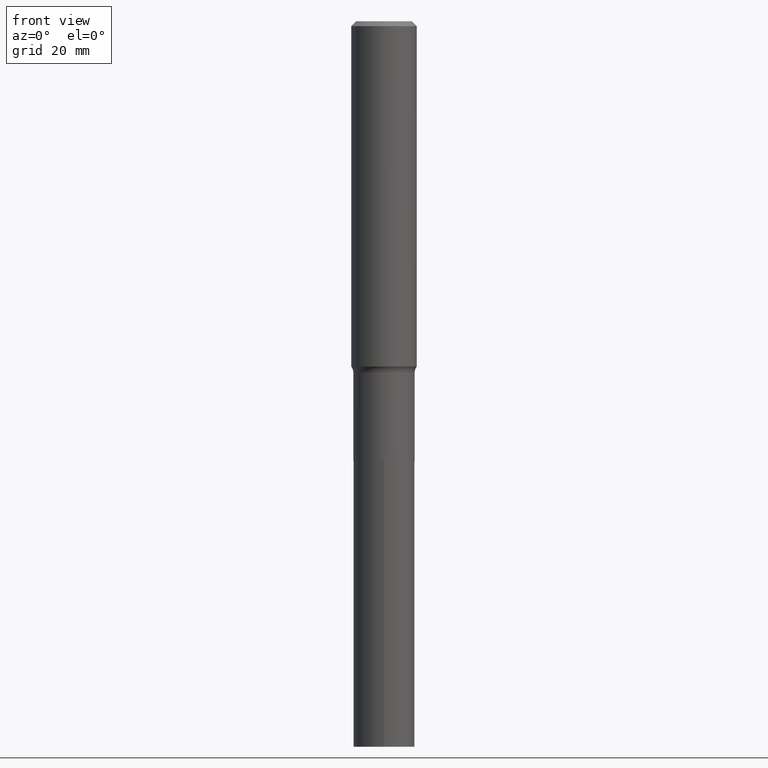
[diagram: clean part render]
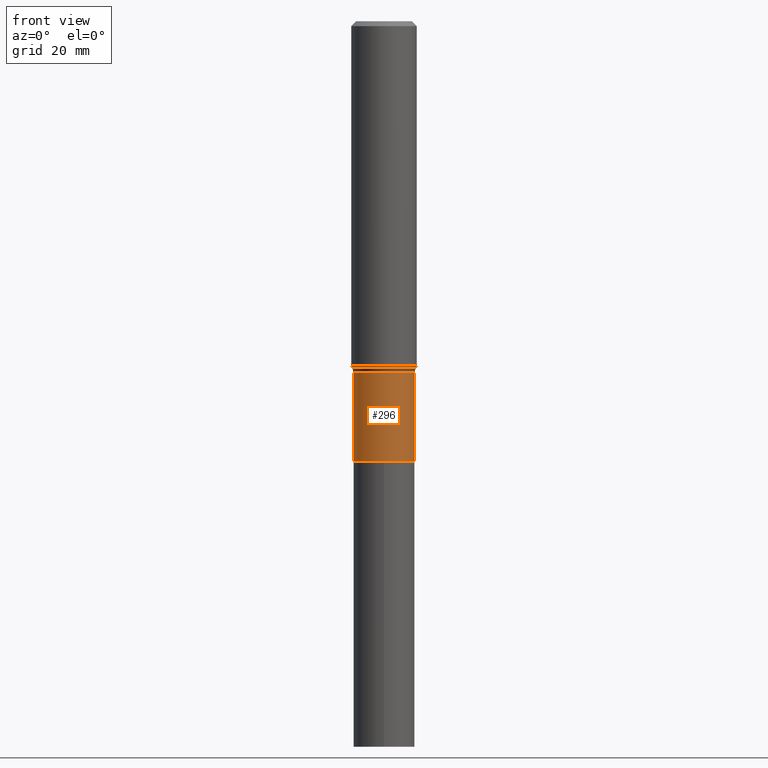
[diagram: same view with one face highlighted and labeled with its STEP entity id]
A machine part, front view. The second image highlights one B-rep face of the part: STEP entity #296.
In plain terms, the highlighted cylindrical surface (edge-blend (fillet) strip) has radius 6.5481 mm, axis along (-0, 0, 1).
Its self-contained STEP definition (entity closure, byte-faithful):
#8 = EDGE_LOOP ( 'NONE', ( #268, #360, #384, #381 ) ) ;
#10 = DIRECTION ( 'NONE',  ( 1.000000000000000000, -6.982962677686267499E-15, 4.876176775795936353E-29 ) ) ;
#17 = AXIS2_PLACEMENT_3D ( 'NONE', #323, #286, #435 ) ;
#31 = CIRCLE ( 'NONE', #17, 0.2577999999999999736 ) ;
#43 = DIRECTION ( 'NONE',  ( -2.445468806185136597E-29, 3.491481338843145583E-15, 1.000000000000000000 ) ) ;
#45 = FACE_OUTER_BOUND ( 'NONE', #8, .T. ) ;
#65 = DIRECTION ( 'NONE',  ( -2.445468806185136877E-29, 3.491481338843145188E-15, 1.000000000000000000 ) ) ;
#96 = CARTESIAN_POINT ( 'NONE',  ( -0.2577999999999999181, 1.831779172789537697E-15, -1.268101466267714406E-29 ) ) ;
#100 = EDGE_CURVE ( 'NONE', #218, #265, #273, .T. ) ;
#152 = VECTOR ( 'NONE', #65, 39.37007874015748143 ) ;
#158 = VERTEX_POINT ( 'NONE', #396 ) ;
#170 = CARTESIAN_POINT ( 'NONE',  ( 0.2577999999999999736, -1.472183106523211783E-14, -3.700899999999999856 ) ) ;
#172 = CIRCLE ( 'NONE', #426, 0.2577999999999999181 ) ;
#180 = DIRECTION ( 'NONE',  ( -2.445468806185136597E-29, 3.491481338843145583E-15, 1.000000000000000000 ) ) ;
#191 = LINE ( 'NONE', #96, #222 ) ;
#218 = VERTEX_POINT ( 'NONE', #170 ) ;
#222 = VECTOR ( 'NONE', #419, 39.37007874015748143 ) ;
#247 = CARTESIAN_POINT ( 'NONE',  ( 0.2577999999999999181, -1.800207778307519167E-15, 1.257078372800191925E-29 ) ) ;
#265 = VERTEX_POINT ( 'NONE', #404 ) ;
#268 = ORIENTED_EDGE ( 'NONE', *, *, #466, .F. ) ;
#273 = LINE ( 'NONE', #247, #152 ) ;
#284 = VERTEX_POINT ( 'NONE', #444 ) ;
#286 = DIRECTION ( 'NONE',  ( -2.445468806185136597E-29, 3.491481338843145583E-15, 1.000000000000000000 ) ) ;
#296 = ADVANCED_FACE ( 'NONE', ( #45 ), #364, .T. ) ;
#300 = AXIS2_PLACEMENT_3D ( 'NONE', #409, #180, #10 ) ;
#318 = EDGE_CURVE ( 'NONE', #284, #265, #172, .T. ) ;
#323 = CARTESIAN_POINT ( 'NONE',  ( 9.050435504810572451E-29, -1.292162328692459709E-14, -3.700899999999999856 ) ) ;
#360 = ORIENTED_EDGE ( 'NONE', *, *, #393, .T. ) ;
#364 = CYLINDRICAL_SURFACE ( 'NONE', #300, 0.2577999999999999181 ) ;
#381 = ORIENTED_EDGE ( 'NONE', *, *, #318, .F. ) ;
#384 = ORIENTED_EDGE ( 'NONE', *, *, #100, .T. ) ;
#393 = EDGE_CURVE ( 'NONE', #158, #218, #31, .T. ) ;
#396 = CARTESIAN_POINT ( 'NONE',  ( -0.2578000000000000291, -9.786124982211029248E-15, -3.700899999999999856 ) ) ;
#404 = CARTESIAN_POINT ( 'NONE',  ( 0.2577999999999999181, -1.211439280138405597E-14, -2.954099999999999948 ) ) ;
#406 = DIRECTION ( 'NONE',  ( 1.000000000000000000, -6.982962677686269077E-15, 0.000000000000000000 ) ) ;
#409 = CARTESIAN_POINT ( 'NONE',  ( 0.000000000000000000, 0.000000000000000000, 0.000000000000000000 ) ) ;
#419 = DIRECTION ( 'NONE',  ( -2.445468806185136877E-29, 3.491481338843145188E-15, 1.000000000000000000 ) ) ;
#426 = AXIS2_PLACEMENT_3D ( 'NONE', #441, #43, #406 ) ;
#435 = DIRECTION ( 'NONE',  ( 1.000000000000000000, -6.982962677686267499E-15, 0.000000000000000000 ) ) ;
#441 = CARTESIAN_POINT ( 'NONE',  ( 7.224159400351512139E-29, -1.031418502307653680E-14, -2.954099999999999948 ) ) ;
#444 = CARTESIAN_POINT ( 'NONE',  ( -0.2577999999999999181, -9.786124982211029248E-15, -2.954099999999999948 ) ) ;
#466 = EDGE_CURVE ( 'NONE', #158, #284, #191, .T. ) ;